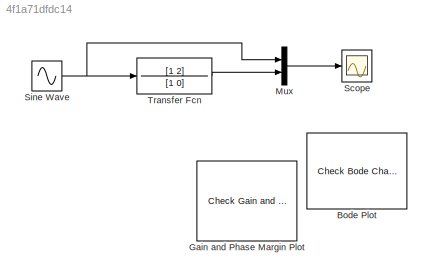
MODEL slx_4f1a71dfdc14
KIND model
BLOCK [Reference] Bode Plot  REF=slctrlblks/Model Verification/Check Bode 
Characteristics
  EnableLowerBound = off
  EnableUpperBound = off
  FrequencyUnits = rad/s
  InstantiateOnLoad = on
  LaunchViewOnOpen = off
  LinearizationIOs = {'/Sine Wave', 1, 'in', 'off', '';'/Transfer Fcn', 1, 'out', 'off', ''}
  LinearizeAt = SnapshotTimes
  LowerBoundFrequencies = []
  LowerBoundMagnitudes = []
  MagnitudeUnits = dB
  OpenViewOnLoad = off
  PhaseUnits = deg
  Ports = []
  PreWarpFreq = 10
  RateConversionMethod = zoh
  SampleTime = auto
  SaveName = sys
  SaveOperatingPoints = off
  SaveToWorkspace = off
  SnapshotTimes = [0]
  SourceBlock = slctrlblks/Model Verification/Check Bode \nCharacteristics
  SourceType = Checks_Bode
  TimeUnits = seconds
  TriggerType = rising
  UpperBoundFrequencies = []
  UpperBoundMagnitudes = []
  UseBusSignalLabels = off
  UseExactDelayModel = off
  UseFullBlockNameLabels = off
  ViewDlgPos = [405 359 510 390]
  ZeroCross = on
  enabled = on
  export = off
  stopWhenAssertionFail = off
BLOCK [Reference] Gain and Phase Margin Plot  REF=slctrlblks/Model Verification/Check Gain and Phase Margins
  EnableMargins = off
  FeedbackSign = -1
  FrequencyUnits = rad/s
  GainMargin = []
  InstantiateOnLoad = on
  LaunchViewOnOpen = off
  LinearizationIOs = {'/Sine Wave', 1, 'in', 'off', '';'/Transfer Fcn', 1, 'out', 'off', ''}
  LinearizeAt = SnapshotTimes
  MagnitudeUnits = dB
  OpenViewOnLoad = off
  PhaseMargin = []
  PhaseUnits = deg
  PlotType = nyquist
  Ports = []
  PreWarpFreq = 10
  RateConversionMethod = zoh
  SampleTime = auto
  SaveName = sys
  SaveOperatingPoints = off
  SaveToWorkspace = off
  SnapshotTimes = [0]
  SourceBlock = slctrlblks/Model Verification/Check Gain and Phase Margins
  SourceType = Checks_Margins
  TimeUnits = seconds
  TriggerType = rising
  UseBusSignalLabels = off
  UseExactDelayModel = off
  UseFullBlockNameLabels = off
  ViewDlgPos = [214 224 510 390]
  ZeroCross = on
  enabled = on
  export = off
  stopWhenAssertionFail = off
BLOCK [Mux] Mux
  DisplayOption = bar
  Inputs = 2
  Ports = [2, 1]
BLOCK [Scope] Scope
  DataFormat = StructureWithTime
  Floating = off
  NumInputPorts = 1
  Ports = [1]
  SampleTime = 0
  ShowLegends = off
BLOCK [Sin] Sine Wave
  Frequency = 0.2
  Ports = [0, 1]
  SampleTime = 0
BLOCK [TransferFcn] Transfer Fcn
  Denominator = [1 0]
  Numerator = [1 2]
LINE Mux:1 -> Scope:1
NET Sine Wave:1 -> Mux:1, Transfer Fcn:1
LINE Transfer Fcn:1 -> Mux:2
note: NET lines group one-source signal fan-out (src -> all destinations, sorted); 1:1 wires keep LINE
